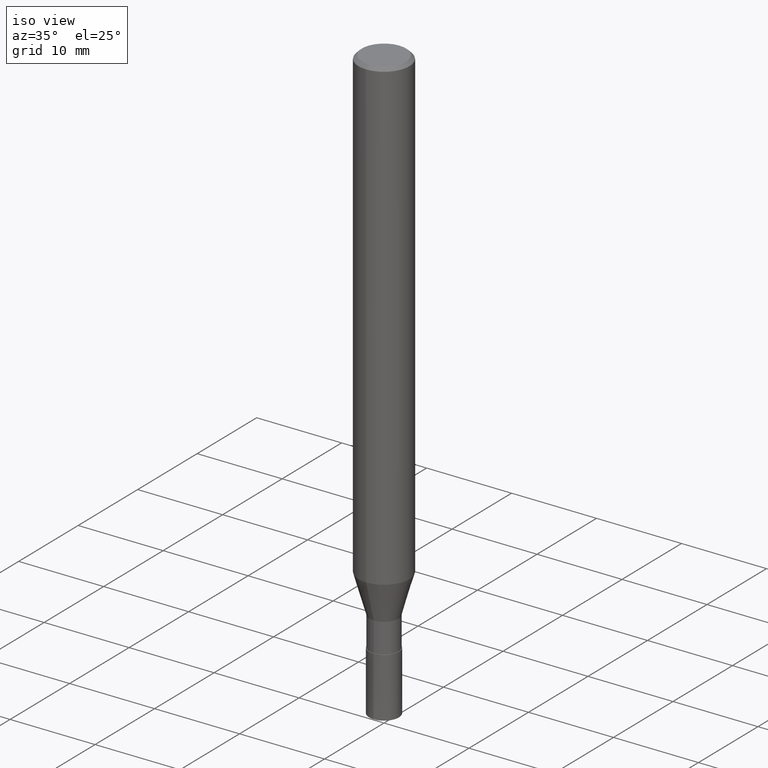
[diagram: clean part render]
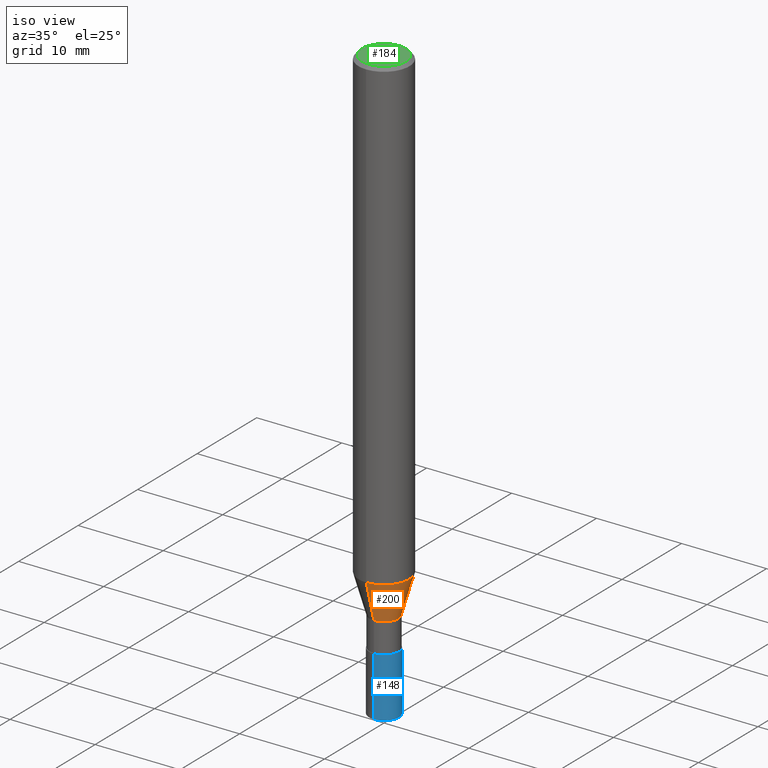
[diagram: same view with three faces highlighted in distinct colors, each labeled with its STEP entity id]
A machine part, iso view with three faces highlighted in distinct colors.
Their STEP definitions:

[orange] entity #200 — the highlighted conical surface has half-angle 15.999 deg.
#94=EDGE_CURVE('',#172,#110,#231,.T.);
#110=VERTEX_POINT('',#250);
#122=EDGE_CURVE('',#172,#190,#263,.T.);
#130=EDGE_CURVE('',#140,#110,#272,.T.);
#140=VERTEX_POINT('',#282);
#172=VERTEX_POINT('',#318);
#190=VERTEX_POINT('',#342);
#194=EDGE_CURVE('',#190,#140,#346,.T.);
#200=ADVANCED_FACE('',(#352),#353,.T.);
#231=CIRCLE('',#379,2.99995);
#250=CARTESIAN_POINT('',(3.67375783114944E-016,-2.99995,-54.966));
#263=LINE('',#419,#420);
#272=LINE('',#430,#431);
#282=CARTESIAN_POINT('',(2.08176957118035E-016,-1.69995,-59.5));
#318=CARTESIAN_POINT('',(0.0,2.99995,-54.966));
#342=CARTESIAN_POINT('',(0.0,1.69995,-59.5));
#346=CIRCLE('',#522,1.69995);
#352=FACE_OUTER_BOUND('',#529,.T.);
#353=CONICAL_SURFACE('',#530,2.34995,0.279231570902613);
#379=AXIS2_PLACEMENT_3D('',#543,#544,#545);
#419=CARTESIAN_POINT('',(-2.8777637011649E-016,2.34995,-57.233));
#420=VECTOR('',#590,1.0);
#430=CARTESIAN_POINT('',(2.8777637011649E-016,-2.34995,-57.233));
#431=VECTOR('',#599,1.0);
#522=AXIS2_PLACEMENT_3D('',#695,#696,#697);
#529=EDGE_LOOP('',(#702,#703,#704,#705));
#530=AXIS2_PLACEMENT_3D('',#706,#707,#708);
#543=CARTESIAN_POINT('',(0.0,0.0,-54.966));
#544=DIRECTION('',(0.0,0.0,-1.0));
#545=DIRECTION('',(0.0,1.0,0.0));
#590=DIRECTION('',(3.37522407896812E-017,-0.275617064082103,-0.961267514267887));
#599=DIRECTION('',(3.37522407896812E-017,-0.275617064082103,0.961267514267887));
#695=CARTESIAN_POINT('',(0.0,0.0,-59.5));
#696=DIRECTION('',(0.0,0.0,-1.0));
#697=DIRECTION('',(0.0,1.0,0.0));
#702=ORIENTED_EDGE('',*,*,#122,.F.);
#703=ORIENTED_EDGE('',*,*,#94,.T.);
#704=ORIENTED_EDGE('',*,*,#130,.F.);
#705=ORIENTED_EDGE('',*,*,#194,.F.);
#706=CARTESIAN_POINT('',(0.0,0.0,-57.233));
#707=DIRECTION('',(-0.0,-0.0,1.0));
#708=DIRECTION('',(0.0,1.0,0.0));

[blue] entity #148 — the highlighted conical surface has half-angle 0.001 deg.
#98=VERTEX_POINT('',#236);
#112=VERTEX_POINT('',#252);
#114=EDGE_CURVE('',#112,#198,#254,.T.);
#116=EDGE_CURVE('',#158,#198,#256,.T.);
#148=ADVANCED_FACE('',(#290),#291,.T.);
#158=VERTEX_POINT('',#302);
#164=EDGE_CURVE('',#98,#158,#308,.T.);
#174=EDGE_CURVE('',#112,#98,#320,.T.);
#198=VERTEX_POINT('',#350);
#236=CARTESIAN_POINT('',(0.0,1.75,-70.0));
#252=CARTESIAN_POINT('',(0.0,1.7499,-63.0));
#254=CIRCLE('',#406,1.7499);
#256=LINE('',#409,#410);
#290=FACE_OUTER_BOUND('',#454,.T.);
#291=CONICAL_SURFACE('',#455,1.74995,1.42857142847409E-005);
#302=CARTESIAN_POINT('',(2.14306111918916E-016,-1.75,-70.0));
#308=CIRCLE('',#478,1.75);
#320=LINE('',#492,#493);
#350=CARTESIAN_POINT('',(2.14293865855378E-016,-1.7499,-63.0));
#406=AXIS2_PLACEMENT_3D('',#575,#576,#577);
#409=CARTESIAN_POINT('',(2.14299988887147E-016,-1.74995,-66.5));
#410=VECTOR('',#578,1.0);
#454=EDGE_LOOP('',(#606,#607,#608,#609));
#455=AXIS2_PLACEMENT_3D('',#610,#611,#612);
#478=AXIS2_PLACEMENT_3D('',#631,#632,#633);
#492=CARTESIAN_POINT('',(-2.14299988887147E-016,1.74995,-66.5));
#493=VECTOR('',#651,1.0);
#575=CARTESIAN_POINT('',(0.0,0.0,-63.0));
#576=DIRECTION('',(0.0,0.0,-1.0));
#577=DIRECTION('',(0.0,1.0,0.0));
#578=DIRECTION('',(-1.74943764813897E-021,1.4285714284255E-005,0.999999999897959));
#606=ORIENTED_EDGE('',*,*,#174,.F.);
#607=ORIENTED_EDGE('',*,*,#114,.T.);
#608=ORIENTED_EDGE('',*,*,#116,.F.);
#609=ORIENTED_EDGE('',*,*,#164,.F.);
#610=CARTESIAN_POINT('',(0.0,0.0,-66.5));
#611=DIRECTION('',(0.0,-0.0,-1.0));
#612=DIRECTION('',(0.0,1.0,0.0));
#631=CARTESIAN_POINT('',(0.0,0.0,-70.0));
#632=DIRECTION('',(0.0,0.0,-1.0));
#633=DIRECTION('',(0.0,1.0,0.0));
#651=DIRECTION('',(-1.74943764813898E-021,1.4285714284255E-005,-0.999999999897959));

[green] entity #184 — the highlighted planar face has unit normal (-0, 0, 1).
#126=VERTEX_POINT('',#268);
#146=EDGE_CURVE('',#126,#208,#288,.T.);
#170=EDGE_CURVE('',#208,#126,#316,.T.);
#184=ADVANCED_FACE('',(#333),#334,.T.);
#208=VERTEX_POINT('',#361);
#268=CARTESIAN_POINT('',(0.0,2.6,0.0));
#288=CIRCLE('',#452,2.6);
#316=CIRCLE('',#487,2.6);
#333=FACE_OUTER_BOUND('',#507,.T.);
#334=PLANE('',#508);
#361=CARTESIAN_POINT('',(3.18397651993818E-016,-2.6,0.0));
#452=AXIS2_PLACEMENT_3D('',#602,#603,#604);
#487=AXIS2_PLACEMENT_3D('',#648,#649,#650);
#507=EDGE_LOOP('',(#671,#672));
#508=AXIS2_PLACEMENT_3D('',#673,#674,#675);
#602=CARTESIAN_POINT('',(0.0,0.0,0.0));
#603=DIRECTION('',(0.0,0.0,-1.0));
#604=DIRECTION('',(0.0,1.0,0.0));
#648=CARTESIAN_POINT('',(0.0,0.0,0.0));
#649=DIRECTION('',(0.0,0.0,-1.0));
#650=DIRECTION('',(0.0,1.0,0.0));
#671=ORIENTED_EDGE('',*,*,#146,.F.);
#672=ORIENTED_EDGE('',*,*,#170,.F.);
#673=CARTESIAN_POINT('',(0.0,1.3,0.0));
#674=DIRECTION('',(-0.0,0.0,1.0));
#675=DIRECTION('',(0.0,-1.0,0.0));